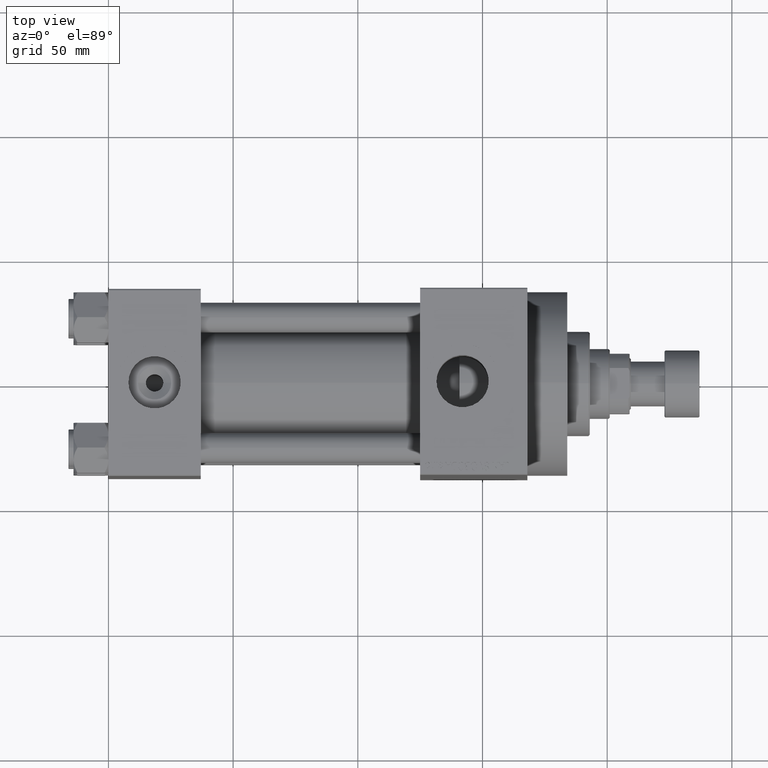
[diagram: clean part render]
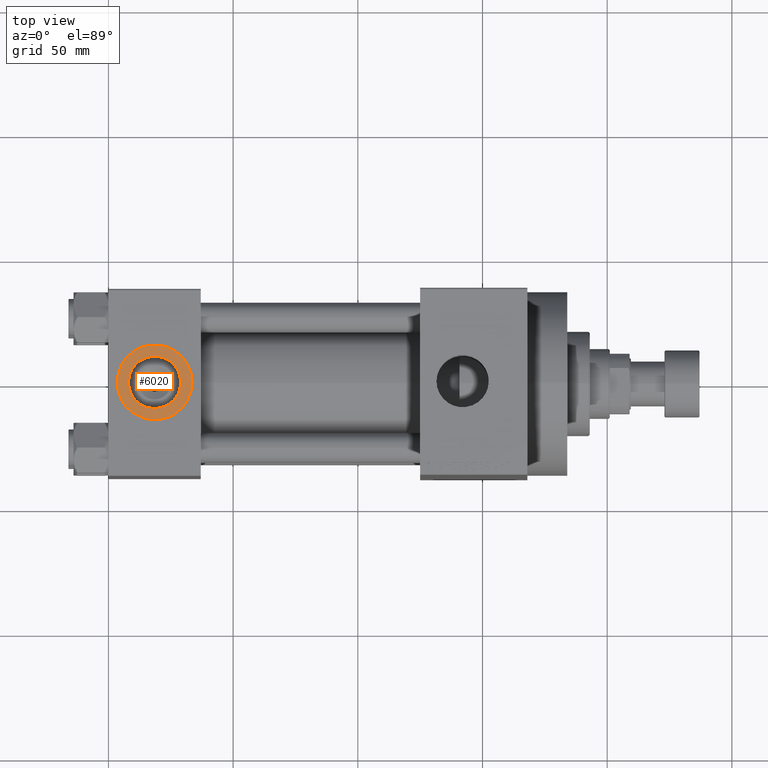
[diagram: same view with one face highlighted and labeled with its STEP entity id]
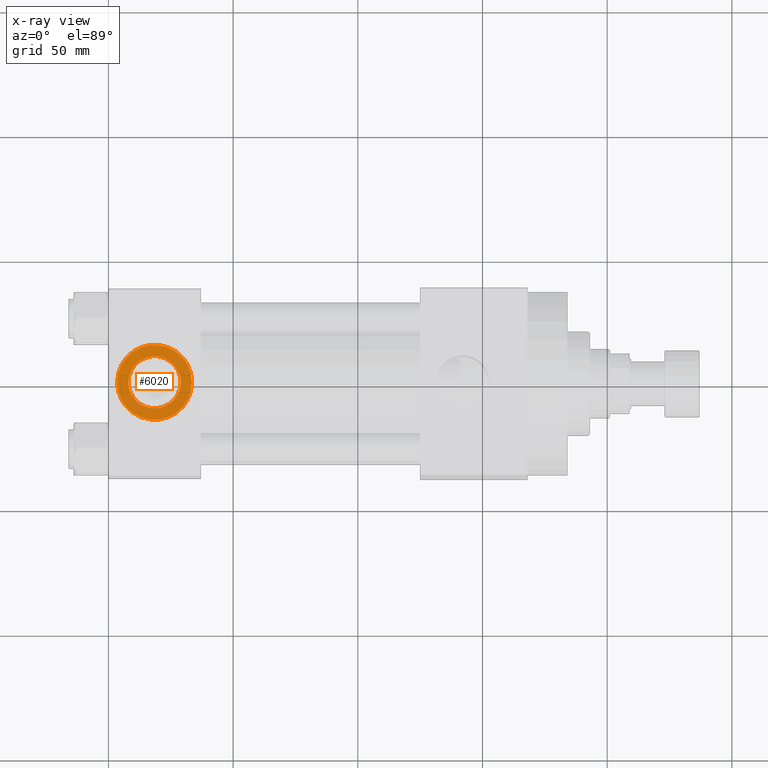
[diagram: x-ray of the same camera — body ghosted, the highlighted face saturated]
A machine part, top view. The second image highlights one B-rep face of the part: STEP entity #6020.
The next image is the same camera in x-ray: the body ghosted, the highlighted face saturated — about 0% of this face is hidden behind the body in this view.
In plain terms, the highlighted planar face has unit normal (0, 0, 1).
Its self-contained STEP definition (entity closure, byte-faithful):
#114 = CARTESIAN_POINT ( 'NONE',  ( 18.50000000000000000, -5.204170427930421283E-15, 37.29999999999999716 ) ) ;
#142 = CARTESIAN_POINT ( 'NONE',  ( 18.50000000000000000, -5.204170427930421283E-15, 37.29999999999999716 ) ) ;
#382 = PLANE ( 'NONE',  #24653 ) ;
#840 = ORIENTED_EDGE ( 'NONE', *, *, #27231, .F. ) ;
#5725 = EDGE_CURVE ( 'NONE', #42917, #37695, #30054, .T. ) ;
#6020 = ADVANCED_FACE ( 'NONE', ( #11950, #15577 ), #382, .T. ) ;
#7337 = DIRECTION ( 'NONE',  ( 0.000000000000000000, 0.000000000000000000, 1.000000000000000000 ) ) ;
#9340 = CARTESIAN_POINT ( 'NONE',  ( 18.50000000000000000, -5.204170427930421283E-15, 37.29999999999999716 ) ) ;
#9351 = DIRECTION ( 'NONE',  ( 0.000000000000000000, 0.000000000000000000, 1.000000000000000000 ) ) ;
#9756 = CIRCLE ( 'NONE', #42849, 10.48000000000000043 ) ;
#10952 = DIRECTION ( 'NONE',  ( 1.000000000000000000, 0.000000000000000000, 0.000000000000000000 ) ) ;
#10991 = AXIS2_PLACEMENT_3D ( 'NONE', #33351, #7337, #10952 ) ;
#11294 = ORIENTED_EDGE ( 'NONE', *, *, #24958, .T. ) ;
#11950 = FACE_BOUND ( 'NONE', #30844, .T. ) ;
#12548 = ORIENTED_EDGE ( 'NONE', *, *, #46675, .F. ) ;
#14864 = DIRECTION ( 'NONE',  ( 0.000000000000000000, 0.000000000000000000, 1.000000000000000000 ) ) ;
#15577 = FACE_OUTER_BOUND ( 'NONE', #31809, .T. ) ;
#15918 = CIRCLE ( 'NONE', #29729, 15.00000000000000355 ) ;
#21757 = CIRCLE ( 'NONE', #10991, 10.48000000000000043 ) ;
#22869 = VERTEX_POINT ( 'NONE', #34995 ) ;
#24395 = CARTESIAN_POINT ( 'NONE',  ( 8.019999999999999574, -3.920740582423995006E-15, 37.29999999999999716 ) ) ;
#24653 = AXIS2_PLACEMENT_3D ( 'NONE', #142, #14864, #29539 ) ;
#24958 = EDGE_CURVE ( 'NONE', #37695, #42917, #15918, .T. ) ;
#26864 = CARTESIAN_POINT ( 'NONE',  ( 33.50000000000000000, -5.204170427930421283E-15, 37.29999999999999716 ) ) ;
#27231 = EDGE_CURVE ( 'NONE', #30219, #22869, #9756, .T. ) ;
#27387 = DIRECTION ( 'NONE',  ( 1.000000000000000000, 0.000000000000000000, 0.000000000000000000 ) ) ;
#29022 = DIRECTION ( 'NONE',  ( 1.000000000000000000, 0.000000000000000000, 0.000000000000000000 ) ) ;
#29539 = DIRECTION ( 'NONE',  ( 1.000000000000000000, 0.000000000000000000, -0.000000000000000000 ) ) ;
#29729 = AXIS2_PLACEMENT_3D ( 'NONE', #35601, #9351, #46207 ) ;
#30054 = CIRCLE ( 'NONE', #46985, 15.00000000000000355 ) ;
#30219 = VERTEX_POINT ( 'NONE', #24395 ) ;
#30844 = EDGE_LOOP ( 'NONE', ( #12548, #840 ) ) ;
#31809 = EDGE_LOOP ( 'NONE', ( #39300, #11294 ) ) ;
#32942 = CARTESIAN_POINT ( 'NONE',  ( 3.499999999999997780, -3.367200229209391300E-15, 37.29999999999999716 ) ) ;
#33351 = CARTESIAN_POINT ( 'NONE',  ( 18.50000000000000000, -5.204170427930421283E-15, 37.29999999999999716 ) ) ;
#34995 = CARTESIAN_POINT ( 'NONE',  ( 28.98000000000000043, -5.204170427930421283E-15, 37.29999999999999716 ) ) ;
#35601 = CARTESIAN_POINT ( 'NONE',  ( 18.50000000000000000, -5.204170427930421283E-15, 37.29999999999999716 ) ) ;
#36747 = DIRECTION ( 'NONE',  ( 0.000000000000000000, 0.000000000000000000, 1.000000000000000000 ) ) ;
#37695 = VERTEX_POINT ( 'NONE', #32942 ) ;
#38251 = DIRECTION ( 'NONE',  ( 0.000000000000000000, 0.000000000000000000, 1.000000000000000000 ) ) ;
#39300 = ORIENTED_EDGE ( 'NONE', *, *, #5725, .T. ) ;
#42849 = AXIS2_PLACEMENT_3D ( 'NONE', #114, #36747, #29022 ) ;
#42917 = VERTEX_POINT ( 'NONE', #26864 ) ;
#46207 = DIRECTION ( 'NONE',  ( 1.000000000000000000, 0.000000000000000000, 0.000000000000000000 ) ) ;
#46675 = EDGE_CURVE ( 'NONE', #22869, #30219, #21757, .T. ) ;
#46985 = AXIS2_PLACEMENT_3D ( 'NONE', #9340, #38251, #27387 ) ;